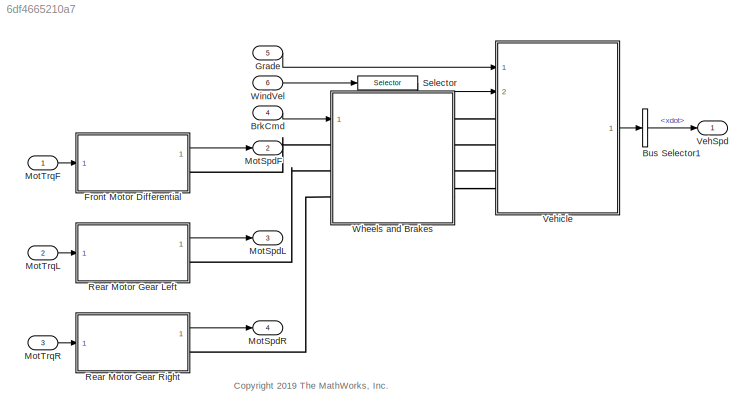
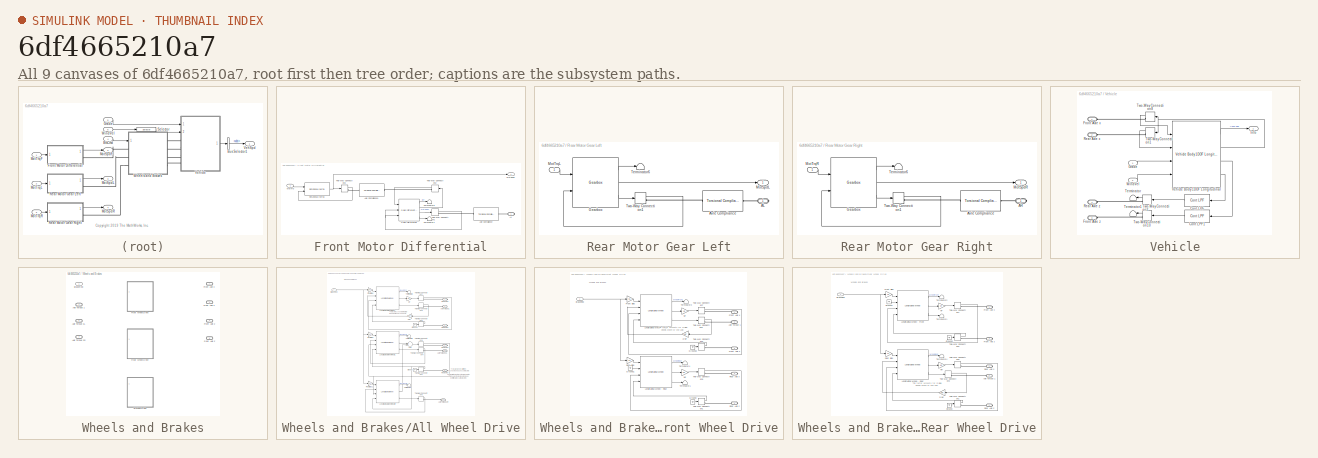
[diagram: thumbnail index - all 9 canvases of the model, root first then tree order]
MODEL slx_6df4665210a7
KIND model
CONFIG AbsTol = auto
CONFIG EnableMultiTasking = off
CONFIG FixedStep = auto
CONFIG MaxStep = auto
CONFIG MinStep = auto
CONFIG RelTol = 1e-3
CONFIG SampleTimeConstraint = Unconstrained
CONFIG Solver = VariableStepAuto
CONFIG SolverName = VariableStepAuto
CONFIG StartTime = 0.0
CONFIG StopTime = 10.0
BLOCK [Inport] BrkCmd
  IconDisplay = Port number
  Port = 4
BLOCK [BusSelector] Bus Selector1
  OutputAsBus = off
  OutputSignals = BdyFrm.Cg.Vel.xdot
  Ports = [1, 1]
BLOCK [SubSystem] Front Motor Differential
  Ports = [1, 1, 0, 0, 0, 0, 1]
  RequestExecContextInheritance = off
  VariantControl = 0
BLOCK [PMIOPort] Front Motor Differential/A1
  Side = Right
BLOCK [Reference] Front Motor Differential/Axle Compliance  REF=autolibsharedcoupling/Torsional Compliance
  Ports = [0, 0, 0, 0, 0, 1, 1]
  SourceBlock = autolibsharedcoupling/Torsional Compliance
  SourceProductName = Powertrain Blockset
  SourceType = Torsional Compliance
BLOCK [Reference] Front Motor Differential/Axle Compliance1  REF=autolibsharedcoupling/Torsional Compliance
  Ports = [0, 0, 0, 0, 0, 1, 1]
  SourceBlock = autolibsharedcoupling/Torsional Compliance
  SourceProductName = Powertrain Blockset
  SourceType = Torsional Compliance
BLOCK [Outport] Front Motor Differential/MotSpdF
  IconDisplay = Port number
  VectorParamsAs1DForOutWhenUnconnected = off
BLOCK [Inport] Front Motor Differential/MotTrq
  IconDisplay = Port number
BLOCK [Reference] Front Motor Differential/Open Differential  REF=autolibshareddiff/Open Differential
  Ports = [3, 4]
  SourceBlock = autolibshareddiff/Open Differential
  SourceProductName = Powertrain Blockset
  SourceType = Open Differential
BLOCK [Reference] Front Motor Differential/Rotational Inertia  REF=autolibsharedcoupling/Rotational Inertia
  Ports = [2, 1]
  SourceBlock = autolibsharedcoupling/Rotational Inertia
  SourceProductBaseCode = PW
  SourceProductName = Powertrain Blockset
  SourceType = Rotational Inertia
BLOCK [Terminator] Front Motor Differential/Terminator1
BLOCK [Terminator] Front Motor Differential/Terminator6
BLOCK [TwoWayConnection] Front Motor Differential/Two-Way Connection1
  Ports = [1, 1, 0, 0, 0, 0, 1]
BLOCK [TwoWayConnection] Front Motor Differential/Two-Way Connection2
  Ports = [1, 1, 0, 0, 0, 0, 1]
BLOCK [TwoWayConnection] Front Motor Differential/Two-Way Connection3
  Ports = [1, 1, 0, 0, 0, 0, 1]
BLOCK [Inport] Grade
  IconDisplay = Port number
  Port = 5
BLOCK [Outport] MotSpdF
  BusOutputAsStruct = on
  IconDisplay = Port number
  Port = 2
  SignalType = real
  VarSizeSig = No
  VectorParamsAs1DForOutWhenUnconnected = off
BLOCK [Outport] MotSpdL
  BusOutputAsStruct = on
  IconDisplay = Port number
  Port = 3
  SignalType = real
  VarSizeSig = No
  VectorParamsAs1DForOutWhenUnconnected = off
BLOCK [Outport] MotSpdR
  BusOutputAsStruct = on
  IconDisplay = Port number
  Port = 4
  SignalType = real
  VarSizeSig = No
  VectorParamsAs1DForOutWhenUnconnected = off
BLOCK [Inport] MotTrqF
  IconDisplay = Port number
BLOCK [Inport] MotTrqL
  IconDisplay = Port number
  Port = 2
BLOCK [Inport] MotTrqR
  IconDisplay = Port number
  Port = 3
BLOCK [SubSystem] Rear Motor Gear Left
  Ports = [1, 1, 0, 0, 0, 0, 1]
  RequestExecContextInheritance = off
  VariantControl = 0
BLOCK [PMIOPort] Rear Motor Gear Left/AL
  Side = Right
BLOCK [Reference] Rear Motor Gear Left/Axle Compliance  REF=autolibsharedcoupling/Torsional Compliance
  Ports = [0, 0, 0, 0, 0, 1, 1]
  SourceBlock = autolibsharedcoupling/Torsional Compliance
  SourceProductName = Powertrain Blockset
  SourceType = Torsional Compliance
BLOCK [Reference] Rear Motor Gear Left/Gearbox  REF=autolibcoupling/Gearbox
  Ports = [2, 3]
  SourceBlock = autolibcoupling/Gearbox
  SourceProductBaseCode = PW
  SourceProductName = Powertrain Blockset
  SourceType = Gearbox
BLOCK [Outport] Rear Motor Gear Left/MotSpdL
  IconDisplay = Port number
  VectorParamsAs1DForOutWhenUnconnected = off
BLOCK [Inport] Rear Motor Gear Left/MotTrqL
  IconDisplay = Port number
BLOCK [Terminator] Rear Motor Gear Left/Terminator6
BLOCK [TwoWayConnection] Rear Motor Gear Left/Two-Way Connection1
  Ports = [1, 1, 0, 0, 0, 0, 1]
BLOCK [SubSystem] Rear Motor Gear Right
  Ports = [1, 1, 0, 0, 0, 0, 1]
  RequestExecContextInheritance = off
  VariantControl = 0
BLOCK [PMIOPort] Rear Motor Gear Right/AR
  Side = Right
BLOCK [Reference] Rear Motor Gear Right/Axle Compliance  REF=autolibsharedcoupling/Torsional Compliance
  Ports = [0, 0, 0, 0, 0, 1, 1]
  SourceBlock = autolibsharedcoupling/Torsional Compliance
  SourceProductName = Powertrain Blockset
  SourceType = Torsional Compliance
BLOCK [Reference] Rear Motor Gear Right/Gearbox  REF=autolibcoupling/Gearbox
  Ports = [2, 3]
  SourceBlock = autolibcoupling/Gearbox
  SourceProductBaseCode = PW
  SourceProductName = Powertrain Blockset
  SourceType = Gearbox
BLOCK [Outport] Rear Motor Gear Right/MotSpdR
  IconDisplay = Port number
  VectorParamsAs1DForOutWhenUnconnected = off
BLOCK [Inport] Rear Motor Gear Right/MotTrqR
  IconDisplay = Port number
BLOCK [Terminator] Rear Motor Gear Right/Terminator6
BLOCK [TwoWayConnection] Rear Motor Gear Right/Two-Way Connection1
  Ports = [1, 1, 0, 0, 0, 0, 1]
BLOCK [Selector] Selector
  IndexOptions = Index vector (dialog)
  Indices = [1]
  InputPortWidth = 3
  OutputSizes = 1
  Ports = [1, 1]
BLOCK [Outport] VehSpd
  IconDisplay = Port number
  VectorParamsAs1DForOutWhenUnconnected = off
BLOCK [SubSystem] Vehicle
  Ports = [2, 1, 0, 0, 0, 4]
  RequestExecContextInheritance = off
BLOCK [Reference] Vehicle/Cont LPF  REF=autolibutils/Cont LPF
  Ports = [1, 1]
  SourceBlock = autolibutils/Cont LPF
  SourceProductBaseCode = PW
  SourceProductName = Powertrain Blockset
BLOCK [Reference] Vehicle/Cont LPF1  REF=autolibutils/Cont LPF
  Ports = [1, 1]
  SourceBlock = autolibutils/Cont LPF
  SourceProductBaseCode = PW
  SourceProductName = Powertrain Blockset
BLOCK [PMIOPort] Vehicle/Front Axle x
  Side = Left
BLOCK [PMIOPort] Vehicle/Front Axle z
  Port = 3
  Side = Left
BLOCK [Inport] Vehicle/Grade
  IconDisplay = Port number
BLOCK [Outport] Vehicle/Info
  IconDisplay = Port number
  VectorParamsAs1DForOutWhenUnconnected = off
BLOCK [PMIOPort] Vehicle/Rear Axle x
  Port = 2
  Side = Left
BLOCK [PMIOPort] Vehicle/Rear Axle z
  Port = 4
  Side = Left
BLOCK [Terminator] Vehicle/Terminator
BLOCK [Terminator] Vehicle/Terminator1
BLOCK [TwoWayConnection] Vehicle/Two-Way Connection1
  Ports = [1, 1, 0, 0, 0, 0, 1]
BLOCK [TwoWayConnection] Vehicle/Two-Way Connection10
  Ports = [1, 1, 0, 0, 0, 0, 1]
BLOCK [TwoWayConnection] Vehicle/Two-Way Connection2
  Ports = [1, 1, 0, 0, 0, 0, 1]
BLOCK [TwoWayConnection] Vehicle/Two-Way Connection8
  Ports = [1, 1, 0, 0, 0, 0, 1]
BLOCK [Reference] Vehicle/Vehicle Body 1DOF Longitudinal  REF=autolibshared/Vehicle Body 1DOF Longitudinal
  Ports = [4, 4]
  SourceBlock = autolibshared/Vehicle Body 1DOF Longitudinal
  SourceProductBaseCode = PW
  SourceProductName = Powertrain Blockset
  SourceType = Vehicle Body 1DOF Longitudinal
BLOCK [Inport] Vehicle/WindVel
  IconDisplay = Port number
  Port = 2
BLOCK [SubSystem] Wheels and Brakes
  LabelModeActiveChoice = 2
  Ports = [1, 0, 0, 0, 0, 3, 4]
  RequestExecContextInheritance = off
  Variant = on
  VariantControlMode = Label
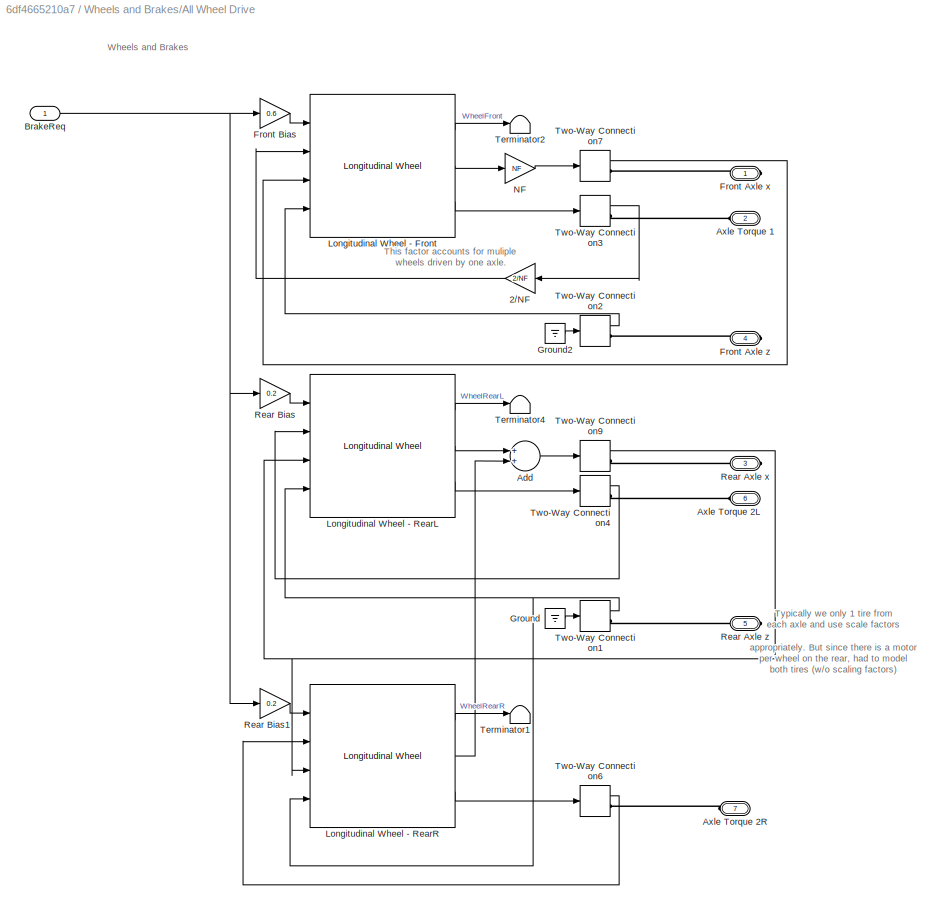
BLOCK [SubSystem] Wheels and Brakes/All Wheel Drive
  Ports = [1, 0, 0, 0, 0, 3, 4]
  RequestExecContextInheritance = off
  VariantControl = 2
BLOCK [Gain] Wheels and Brakes/All Wheel Drive/2//NF
  Gain = 2/NF
  OutDataTypeStr = Inherit: Inherit via internal rule
  ParamDataTypeStr = Inherit: Inherit via internal rule
  SaturateOnIntegerOverflow = off
BLOCK [Sum] Wheels and Brakes/All Wheel Drive/Add
  InputSameDT = off
  OutDataTypeStr = Inherit: Inherit via internal rule
  Ports = [2, 1]
  SaturateOnIntegerOverflow = off
BLOCK [PMIOPort] Wheels and Brakes/All Wheel Drive/Axle Torque 1
  Port = 2
  Side = Left
BLOCK [PMIOPort] Wheels and Brakes/All Wheel Drive/Axle Torque 2L
  Port = 6
  Side = Left
BLOCK [PMIOPort] Wheels and Brakes/All Wheel Drive/Axle Torque 2R
  Port = 7
  Side = Left
BLOCK [Inport] Wheels and Brakes/All Wheel Drive/BrakeReq
  IconDisplay = Port number
BLOCK [PMIOPort] Wheels and Brakes/All Wheel Drive/Front Axle x
  Side = Right
BLOCK [PMIOPort] Wheels and Brakes/All Wheel Drive/Front Axle z
  Port = 4
  Side = Right
BLOCK [Gain] Wheels and Brakes/All Wheel Drive/Front Bias
  Gain = 0.6
  OutDataTypeStr = Inherit: Inherit via internal rule
  ParamDataTypeStr = Inherit: Inherit via internal rule
  SaturateOnIntegerOverflow = off
BLOCK [Ground] Wheels and Brakes/All Wheel Drive/Ground
BLOCK [Ground] Wheels and Brakes/All Wheel Drive/Ground2
BLOCK [Reference] Wheels and Brakes/All Wheel Drive/Longitudinal Wheel - Front  REF=autolibshared/Longitudinal Wheel
  AttributesFormatString = Brake Type: %<BrakeType>
  Ports = [4, 3]
  SourceBlock = autolibshared/Longitudinal Wheel
  SourceProductBaseCode = PW
  SourceProductName = Powertrain Blockset
  SourceType = Longitudinal Wheel
BLOCK [Reference] Wheels and Brakes/All Wheel Drive/Longitudinal Wheel - RearL  REF=autolibshared/Longitudinal Wheel
  AttributesFormatString = Brake Type: %<BrakeType>
  Ports = [4, 3]
  SourceBlock = autolibshared/Longitudinal Wheel
  SourceProductBaseCode = PW
  SourceProductName = Powertrain Blockset
  SourceType = Longitudinal Wheel
BLOCK [Reference] Wheels and Brakes/All Wheel Drive/Longitudinal Wheel - RearR  REF=autolibshared/Longitudinal Wheel
  AttributesFormatString = Brake Type: %<BrakeType>
  Ports = [4, 3]
  SourceBlock = autolibshared/Longitudinal Wheel
  SourceProductBaseCode = PW
  SourceProductName = Powertrain Blockset
  SourceType = Longitudinal Wheel
BLOCK [Gain] Wheels and Brakes/All Wheel Drive/NF
  Gain = NF
  OutDataTypeStr = Inherit: Inherit via internal rule
  ParamDataTypeStr = Inherit: Inherit via internal rule
  SaturateOnIntegerOverflow = off
BLOCK [PMIOPort] Wheels and Brakes/All Wheel Drive/Rear Axle x
  Port = 3
  Side = Right
BLOCK [PMIOPort] Wheels and Brakes/All Wheel Drive/Rear Axle z
  Port = 5
  Side = Right
BLOCK [Gain] Wheels and Brakes/All Wheel Drive/Rear Bias
  Gain = 0.2
  OutDataTypeStr = Inherit: Inherit via internal rule
  ParamDataTypeStr = Inherit: Inherit via internal rule
  SaturateOnIntegerOverflow = off
BLOCK [Gain] Wheels and Brakes/All Wheel Drive/Rear Bias1
  Gain = 0.2
  OutDataTypeStr = Inherit: Inherit via internal rule
  ParamDataTypeStr = Inherit: Inherit via internal rule
  SaturateOnIntegerOverflow = off
BLOCK [Terminator] Wheels and Brakes/All Wheel Drive/Terminator1
BLOCK [Terminator] Wheels and Brakes/All Wheel Drive/Terminator2
BLOCK [Terminator] Wheels and Brakes/All Wheel Drive/Terminator4
BLOCK [TwoWayConnection] Wheels and Brakes/All Wheel Drive/Two-Way Connection1
  Ports = [1, 1, 0, 0, 0, 0, 1]
BLOCK [TwoWayConnection] Wheels and Brakes/All Wheel Drive/Two-Way Connection2
  Ports = [1, 1, 0, 0, 0, 0, 1]
BLOCK [TwoWayConnection] Wheels and Brakes/All Wheel Drive/Two-Way Connection3
  Ports = [1, 1, 0, 0, 0, 0, 1]
BLOCK [TwoWayConnection] Wheels and Brakes/All Wheel Drive/Two-Way Connection4
  Ports = [1, 1, 0, 0, 0, 0, 1]
BLOCK [TwoWayConnection] Wheels and Brakes/All Wheel Drive/Two-Way Connection6
  Ports = [1, 1, 0, 0, 0, 0, 1]
BLOCK [TwoWayConnection] Wheels and Brakes/All Wheel Drive/Two-Way Connection7
  Ports = [1, 1, 0, 0, 0, 0, 1]
BLOCK [TwoWayConnection] Wheels and Brakes/All Wheel Drive/Two-Way Connection9
  Ports = [1, 1, 0, 0, 0, 0, 1]
BLOCK [PMIOPort] Wheels and Brakes/Axle Torque 1
  Port = 2
  Side = Left
BLOCK [PMIOPort] Wheels and Brakes/Axle Torque 2L
  Port = 6
  Side = Left
BLOCK [PMIOPort] Wheels and Brakes/Axle Torque 2R
  Port = 7
  Side = Left
BLOCK [Inport] Wheels and Brakes/BrakeReq
  IconDisplay = Port number
BLOCK [PMIOPort] Wheels and Brakes/Front Axle x
  Side = Right
BLOCK [PMIOPort] Wheels and Brakes/Front Axle z
  Port = 4
  Side = Right
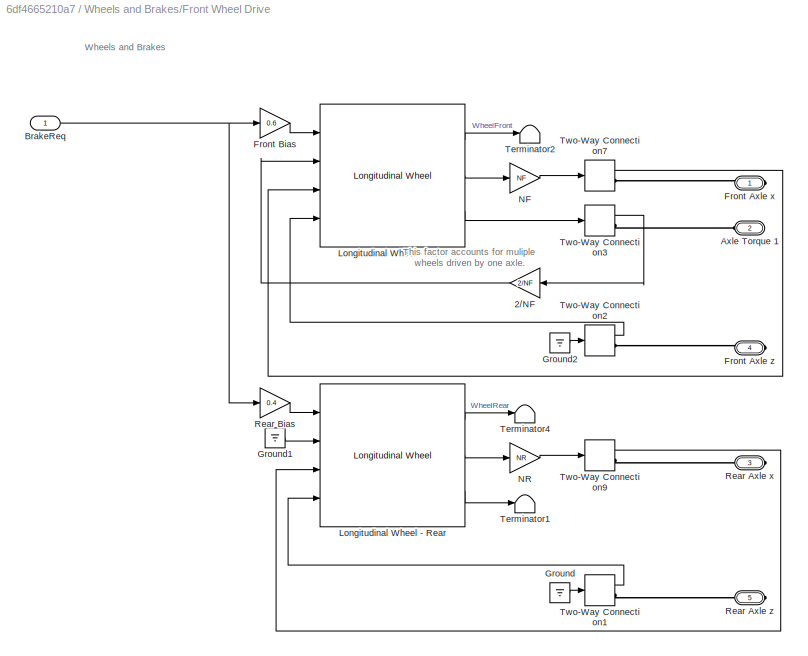
BLOCK [SubSystem] Wheels and Brakes/Front Wheel Drive
  Ports = [1, 0, 0, 0, 0, 1, 4]
  RequestExecContextInheritance = off
  VariantControl = 0
BLOCK [Gain] Wheels and Brakes/Front Wheel Drive/2//NF
  Gain = 2/NF
  OutDataTypeStr = Inherit: Inherit via internal rule
  ParamDataTypeStr = Inherit: Inherit via internal rule
  SaturateOnIntegerOverflow = off
BLOCK [PMIOPort] Wheels and Brakes/Front Wheel Drive/Axle Torque 1
  Port = 2
  Side = Left
BLOCK [Inport] Wheels and Brakes/Front Wheel Drive/BrakeReq
  IconDisplay = Port number
BLOCK [PMIOPort] Wheels and Brakes/Front Wheel Drive/Front Axle x
  Side = Right
BLOCK [PMIOPort] Wheels and Brakes/Front Wheel Drive/Front Axle z
  Port = 4
  Side = Right
BLOCK [Gain] Wheels and Brakes/Front Wheel Drive/Front Bias
  Gain = 0.6
  OutDataTypeStr = Inherit: Inherit via internal rule
  ParamDataTypeStr = Inherit: Inherit via internal rule
  SaturateOnIntegerOverflow = off
BLOCK [Ground] Wheels and Brakes/Front Wheel Drive/Ground
BLOCK [Ground] Wheels and Brakes/Front Wheel Drive/Ground1
BLOCK [Ground] Wheels and Brakes/Front Wheel Drive/Ground2
BLOCK [Reference] Wheels and Brakes/Front Wheel Drive/Longitudinal Wheel - Front  REF=autolibshared/Longitudinal Wheel
  AttributesFormatString = Brake Type: %<BrakeType>
  Ports = [4, 3]
  SourceBlock = autolibshared/Longitudinal Wheel
  SourceProductBaseCode = PW
  SourceProductName = Powertrain Blockset
  SourceType = Longitudinal Wheel
BLOCK [Reference] Wheels and Brakes/Front Wheel Drive/Longitudinal Wheel - Rear  REF=autolibshared/Longitudinal Wheel
  AttributesFormatString = Brake Type: %<BrakeType>
  Ports = [4, 3]
  SourceBlock = autolibshared/Longitudinal Wheel
  SourceProductBaseCode = PW
  SourceProductName = Powertrain Blockset
  SourceType = Longitudinal Wheel
BLOCK [Gain] Wheels and Brakes/Front Wheel Drive/NF
  Gain = NF
  OutDataTypeStr = Inherit: Inherit via internal rule
  ParamDataTypeStr = Inherit: Inherit via internal rule
  SaturateOnIntegerOverflow = off
BLOCK [Gain] Wheels and Brakes/Front Wheel Drive/NR
  Gain = NR
  OutDataTypeStr = Inherit: Inherit via internal rule
  ParamDataTypeStr = Inherit: Inherit via internal rule
  SaturateOnIntegerOverflow = off
BLOCK [PMIOPort] Wheels and Brakes/Front Wheel Drive/Rear Axle x
  Port = 3
  Side = Right
BLOCK [PMIOPort] Wheels and Brakes/Front Wheel Drive/Rear Axle z
  Port = 5
  Side = Right
BLOCK [Gain] Wheels and Brakes/Front Wheel Drive/Rear Bias
  Gain = 0.4
  OutDataTypeStr = Inherit: Inherit via internal rule
  ParamDataTypeStr = Inherit: Inherit via internal rule
  SaturateOnIntegerOverflow = off
BLOCK [Terminator] Wheels and Brakes/Front Wheel Drive/Terminator1
BLOCK [Terminator] Wheels and Brakes/Front Wheel Drive/Terminator2
BLOCK [Terminator] Wheels and Brakes/Front Wheel Drive/Terminator4
BLOCK [TwoWayConnection] Wheels and Brakes/Front Wheel Drive/Two-Way Connection1
  Ports = [1, 1, 0, 0, 0, 0, 1]
BLOCK [TwoWayConnection] Wheels and Brakes/Front Wheel Drive/Two-Way Connection2
  Ports = [1, 1, 0, 0, 0, 0, 1]
BLOCK [TwoWayConnection] Wheels and Brakes/Front Wheel Drive/Two-Way Connection3
  Ports = [1, 1, 0, 0, 0, 0, 1]
BLOCK [TwoWayConnection] Wheels and Brakes/Front Wheel Drive/Two-Way Connection7
  Ports = [1, 1, 0, 0, 0, 0, 1]
BLOCK [TwoWayConnection] Wheels and Brakes/Front Wheel Drive/Two-Way Connection9
  Ports = [1, 1, 0, 0, 0, 0, 1]
BLOCK [PMIOPort] Wheels and Brakes/Rear Axle x
  Port = 3
  Side = Right
BLOCK [PMIOPort] Wheels and Brakes/Rear Axle z
  Port = 5
  Side = Right
BLOCK [SubSystem] Wheels and Brakes/Rear Wheel Drive
  Ports = [1, 0, 0, 0, 0, 1, 4]
  RequestExecContextInheritance = off
  VariantControl = 1
BLOCK [Gain] Wheels and Brakes/Rear Wheel Drive/2//NR
  Gain = 2/NR
  OutDataTypeStr = Inherit: Inherit via internal rule
  ParamDataTypeStr = Inherit: Inherit via internal rule
  SaturateOnIntegerOverflow = off
BLOCK [PMIOPort] Wheels and Brakes/Rear Wheel Drive/Axle Torque 1
  Port = 5
  Side = Left
BLOCK [Inport] Wheels and Brakes/Rear Wheel Drive/BrakeReq
  IconDisplay = Port number
BLOCK [PMIOPort] Wheels and Brakes/Rear Wheel Drive/Front Axle x
  Side = Right
BLOCK [PMIOPort] Wheels and Brakes/Rear Wheel Drive/Front Axle z
  Port = 3
  Side = Right
BLOCK [Gain] Wheels and Brakes/Rear Wheel Drive/Front Bias
  Gain = 0.6
  OutDataTypeStr = Inherit: Inherit via internal rule
  ParamDataTypeStr = Inherit: Inherit via internal rule
  SaturateOnIntegerOverflow = off
BLOCK [Ground] Wheels and Brakes/Rear Wheel Drive/Ground
BLOCK [Ground] Wheels and Brakes/Rear Wheel Drive/Ground1
BLOCK [Ground] Wheels and Brakes/Rear Wheel Drive/Ground2
BLOCK [Reference] Wheels and Brakes/Rear Wheel Drive/Longitudinal Wheel - Front  REF=autolibshared/Longitudinal Wheel
  AttributesFormatString = Brake Type: %<BrakeType>
  Ports = [4, 3]
  SourceBlock = autolibshared/Longitudinal Wheel
  SourceProductBaseCode = PW
  SourceProductName = Powertrain Blockset
  SourceType = Longitudinal Wheel
BLOCK [Reference] Wheels and Brakes/Rear Wheel Drive/Longitudinal Wheel - Rear  REF=autolibshared/Longitudinal Wheel
  AttributesFormatString = Brake Type: %<BrakeType>
  Ports = [4, 3]
  SourceBlock = autolibshared/Longitudinal Wheel
  SourceProductBaseCode = PW
  SourceProductName = Powertrain Blockset
  SourceType = Longitudinal Wheel
BLOCK [Gain] Wheels and Brakes/Rear Wheel Drive/NF
  Gain = NF
  OutDataTypeStr = Inherit: Inherit via internal rule
  ParamDataTypeStr = Inherit: Inherit via internal rule
  SaturateOnIntegerOverflow = off
BLOCK [Gain] Wheels and Brakes/Rear Wheel Drive/NR
  Gain = NR
  OutDataTypeStr = Inherit: Inherit via internal rule
  ParamDataTypeStr = Inherit: Inherit via internal rule
  SaturateOnIntegerOverflow = off
BLOCK [PMIOPort] Wheels and Brakes/Rear Wheel Drive/Rear Axle x
  Port = 2
  Side = Right
BLOCK [PMIOPort] Wheels and Brakes/Rear Wheel Drive/Rear Axle z
  Port = 4
  Side = Right
BLOCK [Gain] Wheels and Brakes/Rear Wheel Drive/Rear Bias
  Gain = 0.4
  OutDataTypeStr = Inherit: Inherit via internal rule
  ParamDataTypeStr = Inherit: Inherit via internal rule
  SaturateOnIntegerOverflow = off
BLOCK [Terminator] Wheels and Brakes/Rear Wheel Drive/Terminator1
BLOCK [Terminator] Wheels and Brakes/Rear Wheel Drive/Terminator2
BLOCK [Terminator] Wheels and Brakes/Rear Wheel Drive/Terminator4
BLOCK [TwoWayConnection] Wheels and Brakes/Rear Wheel Drive/Two-Way Connection1
  Ports = [1, 1, 0, 0, 0, 0, 1]
BLOCK [TwoWayConnection] Wheels and Brakes/Rear Wheel Drive/Two-Way Connection2
  Ports = [1, 1, 0, 0, 0, 0, 1]
BLOCK [TwoWayConnection] Wheels and Brakes/Rear Wheel Drive/Two-Way Connection3
  Ports = [1, 1, 0, 0, 0, 0, 1]
BLOCK [TwoWayConnection] Wheels and Brakes/Rear Wheel Drive/Two-Way Connection7
  Ports = [1, 1, 0, 0, 0, 0, 1]
BLOCK [TwoWayConnection] Wheels and Brakes/Rear Wheel Drive/Two-Way Connection9
  Ports = [1, 1, 0, 0, 0, 0, 1]
BLOCK [Inport] WindVel
  IconDisplay = Port number
  Port = 6
ANNOTATION (root): <copyright redacted>
ANNOTATION Wheels and Brakes/All Wheel Drive: This factor accounts for muliple wheels driven by one axle.
ANNOTATION Wheels and Brakes/All Wheel Drive: Typically we only 1 tire from each axle and use scale factors appropriately. But since there is a motor per wheel on the rear, had to model both tires (w/o scaling factors)
ANNOTATION Wheels and Brakes/All Wheel Drive: Wheels and Brakes
ANNOTATION Wheels and Brakes/Front Wheel Drive: This factor accounts for muliple wheels driven by one axle.
ANNOTATION Wheels and Brakes/Front Wheel Drive: Wheels and Brakes
ANNOTATION Wheels and Brakes/Rear Wheel Drive: This factor accounts for muliple wheels driven by one axle.
ANNOTATION Wheels and Brakes/Rear Wheel Drive: Wheels and Brakes
LINE BrkCmd:1 -> Wheels and Brakes:1
LINE Bus Selector1:1 -> VehSpd:1
LINE Front Motor Differential/MotTrq:1 -> Front Motor Differential/Rotational Inertia:1
LINE Front Motor Differential/Open Differential:1 -> Front Motor Differential/Terminator6:1
LINE Front Motor Differential/Open Differential:2 -> Front Motor Differential/Two-Way Connection2:1
LINE Front Motor Differential/Open Differential:3 -> Front Motor Differential/Two-Way Connection1:1
LINE Front Motor Differential/Open Differential:4 -> Front Motor Differential/Terminator1:1
NET Front Motor Differential/Rotational Inertia:1 -> Front Motor Differential/MotSpdF:1, Front Motor Differential/Two-Way Connection3:1
NET Front Motor Differential/Two-Way Connection1:1 -> Front Motor Differential/Open Differential:2, Front Motor Differential/Open Differential:3
LINE Front Motor Differential/Two-Way Connection2:1 -> Front Motor Differential/Open Differential:1
LINE Front Motor Differential/Two-Way Connection3:1 -> Front Motor Differential/Rotational Inertia:2
LINE Front Motor Differential:1 -> MotSpdF:1
LINE Grade:1 -> Vehicle:1
LINE MotTrqF:1 -> Front Motor Differential:1
LINE MotTrqL:1 -> Rear Motor Gear Left:1
LINE MotTrqR:1 -> Rear Motor Gear Right:1
LINE Rear Motor Gear Left/Gearbox:1 -> Rear Motor Gear Left/Terminator6:1
LINE Rear Motor Gear Left/Gearbox:2 -> Rear Motor Gear Left/MotSpdL:1
LINE Rear Motor Gear Left/Gearbox:3 -> Rear Motor Gear Left/Two-Way Connection1:1
LINE Rear Motor Gear Left/MotTrqL:1 -> Rear Motor Gear Left/Gearbox:1
LINE Rear Motor Gear Left/Two-Way Connection1:1 -> Rear Motor Gear Left/Gearbox:2
LINE Rear Motor Gear Left:1 -> MotSpdL:1
LINE Rear Motor Gear Right/Gearbox:1 -> Rear Motor Gear Right/Terminator6:1
LINE Rear Motor Gear Right/Gearbox:2 -> Rear Motor Gear Right/MotSpdR:1
LINE Rear Motor Gear Right/Gearbox:3 -> Rear Motor Gear Right/Two-Way Connection1:1
LINE Rear Motor Gear Right/MotTrqR:1 -> Rear Motor Gear Right/Gearbox:1
LINE Rear Motor Gear Right/Two-Way Connection1:1 -> Rear Motor Gear Right/Gearbox:2
LINE Rear Motor Gear Right:1 -> MotSpdR:1
LINE Selector:1 -> Vehicle:2
LINE Vehicle/Cont LPF1:1 -> Vehicle/Two-Way Connection10:1
LINE Vehicle/Cont LPF:1 -> Vehicle/Two-Way Connection2:1
LINE Vehicle/Grade:1 -> Vehicle/Vehicle Body 1DOF Longitudinal:3
LINE Vehicle/Two-Way Connection10:1 -> Vehicle/Terminator1:1
LINE Vehicle/Two-Way Connection1:1 -> Vehicle/Vehicle Body 1DOF Longitudinal:2
LINE Vehicle/Two-Way Connection2:1 -> Vehicle/Terminator:1
LINE Vehicle/Two-Way Connection8:1 -> Vehicle/Vehicle Body 1DOF Longitudinal:1
LINE Vehicle/Vehicle Body 1DOF Longitudinal:1 -> Vehicle/Info:1
NET Vehicle/Vehicle Body 1DOF Longitudinal:2 -> Vehicle/Two-Way Connection1:1, Vehicle/Two-Way Connection8:1
LINE Vehicle/Vehicle Body 1DOF Longitudinal:3 -> Vehicle/Cont LPF1:1
LINE Vehicle/Vehicle Body 1DOF Longitudinal:4 -> Vehicle/Cont LPF:1
LINE Vehicle/WindVel:1 -> Vehicle/Vehicle Body 1DOF Longitudinal:4
LINE Vehicle:1 -> Bus Selector1:1
LINE Wheels and Brakes/All Wheel Drive/2//NF:1 -> Wheels and Brakes/All Wheel Drive/Longitudinal Wheel - Front:2
LINE Wheels and Brakes/All Wheel Drive/Add:1 -> Wheels and Brakes/All Wheel Drive/Two-Way Connection9:1
NET Wheels and Brakes/All Wheel Drive/BrakeReq:1 -> Wheels and Brakes/All Wheel Drive/Front Bias:1, Wheels and Brakes/All Wheel Drive/Rear Bias1:1, Wheels and Brakes/All Wheel Drive/Rear Bias:1
LINE Wheels and Brakes/All Wheel Drive/Front Bias:1 -> Wheels and Brakes/All Wheel Drive/Longitudinal Wheel - Front:1
LINE Wheels and Brakes/All Wheel Drive/Ground2:1 -> Wheels and Brakes/All Wheel Drive/Two-Way Connection2:1
LINE Wheels and Brakes/All Wheel Drive/Ground:1 -> Wheels and Brakes/All Wheel Drive/Two-Way Connection1:1
LINE Wheels and Brakes/All Wheel Drive/Longitudinal Wheel - Front:1 -> Wheels and Brakes/All Wheel Drive/Terminator2:1
LINE Wheels and Brakes/All Wheel Drive/Longitudinal Wheel - Front:2 -> Wheels and Brakes/All Wheel Drive/NF:1
LINE Wheels and Brakes/All Wheel Drive/Longitudinal Wheel - Front:3 -> Wheels and Brakes/All Wheel Drive/Two-Way Connection3:1
LINE Wheels and Brakes/All Wheel Drive/Longitudinal Wheel - RearL:1 -> Wheels and Brakes/All Wheel Drive/Terminator4:1
LINE Wheels and Brakes/All Wheel Drive/Longitudinal Wheel - RearL:2 -> Wheels and Brakes/All Wheel Drive/Add:1
LINE Wheels and Brakes/All Wheel Drive/Longitudinal Wheel - RearL:3 -> Wheels and Brakes/All Wheel Drive/Two-Way Connection4:1
LINE Wheels and Brakes/All Wheel Drive/Longitudinal Wheel - RearR:1 -> Wheels and Brakes/All Wheel Drive/Terminator1:1
LINE Wheels and Brakes/All Wheel Drive/Longitudinal Wheel - RearR:2 -> Wheels and Brakes/All Wheel Drive/Add:2
LINE Wheels and Brakes/All Wheel Drive/Longitudinal Wheel - RearR:3 -> Wheels and Brakes/All Wheel Drive/Two-Way Connection6:1
LINE Wheels and Brakes/All Wheel Drive/NF:1 -> Wheels and Brakes/All Wheel Drive/Two-Way Connection7:1
LINE Wheels and Brakes/All Wheel Drive/Rear Bias1:1 -> Wheels and Brakes/All Wheel Drive/Longitudinal Wheel - RearR:1
LINE Wheels and Brakes/All Wheel Drive/Rear Bias:1 -> Wheels and Brakes/All Wheel Drive/Longitudinal Wheel - RearL:1
NET Wheels and Brakes/All Wheel Drive/Two-Way Connection1:1 -> Wheels and Brakes/All Wheel Drive/Longitudinal Wheel - RearL:4, Wheels and Brakes/All Wheel Drive/Longitudinal Wheel - RearR:4
LINE Wheels and Brakes/All Wheel Drive/Two-Way Connection2:1 -> Wheels and Brakes/All Wheel Drive/Longitudinal Wheel - Front:4
LINE Wheels and Brakes/All Wheel Drive/Two-Way Connection3:1 -> Wheels and Brakes/All Wheel Drive/2//NF:1
LINE Wheels and Brakes/All Wheel Drive/Two-Way Connection4:1 -> Wheels and Brakes/All Wheel Drive/Longitudinal Wheel - RearL:2
LINE Wheels and Brakes/All Wheel Drive/Two-Way Connection6:1 -> Wheels and Brakes/All Wheel Drive/Longitudinal Wheel - RearR:2
LINE Wheels and Brakes/All Wheel Drive/Two-Way Connection7:1 -> Wheels and Brakes/All Wheel Drive/Longitudinal Wheel - Front:3
NET Wheels and Brakes/All Wheel Drive/Two-Way Connection9:1 -> Wheels and Brakes/All Wheel Drive/Longitudinal Wheel - RearL:3, Wheels and Brakes/All Wheel Drive/Longitudinal Wheel - RearR:3
LINE Wheels and Brakes/Front Wheel Drive/2//NF:1 -> Wheels and Brakes/Front Wheel Drive/Longitudinal Wheel - Front:2
NET Wheels and Brakes/Front Wheel Drive/BrakeReq:1 -> Wheels and Brakes/Front Wheel Drive/Front Bias:1, Wheels and Brakes/Front Wheel Drive/Rear Bias:1
LINE Wheels and Brakes/Front Wheel Drive/Front Bias:1 -> Wheels and Brakes/Front Wheel Drive/Longitudinal Wheel - Front:1
LINE Wheels and Brakes/Front Wheel Drive/Ground1:1 -> Wheels and Brakes/Front Wheel Drive/Longitudinal Wheel - Rear:2
LINE Wheels and Brakes/Front Wheel Drive/Ground2:1 -> Wheels and Brakes/Front Wheel Drive/Two-Way Connection2:1
LINE Wheels and Brakes/Front Wheel Drive/Ground:1 -> Wheels and Brakes/Front Wheel Drive/Two-Way Connection1:1
LINE Wheels and Brakes/Front Wheel Drive/Longitudinal Wheel - Front:1 -> Wheels and Brakes/Front Wheel Drive/Terminator2:1
LINE Wheels and Brakes/Front Wheel Drive/Longitudinal Wheel - Front:2 -> Wheels and Brakes/Front Wheel Drive/NF:1
LINE Wheels and Brakes/Front Wheel Drive/Longitudinal Wheel - Front:3 -> Wheels and Brakes/Front Wheel Drive/Two-Way Connection3:1
LINE Wheels and Brakes/Front Wheel Drive/Longitudinal Wheel - Rear:1 -> Wheels and Brakes/Front Wheel Drive/Terminator4:1
LINE Wheels and Brakes/Front Wheel Drive/Longitudinal Wheel - Rear:2 -> Wheels and Brakes/Front Wheel Drive/NR:1
LINE Wheels and Brakes/Front Wheel Drive/Longitudinal Wheel - Rear:3 -> Wheels and Brakes/Front Wheel Drive/Terminator1:1
LINE Wheels and Brakes/Front Wheel Drive/NF:1 -> Wheels and Brakes/Front Wheel Drive/Two-Way Connection7:1
LINE Wheels and Brakes/Front Wheel Drive/NR:1 -> Wheels and Brakes/Front Wheel Drive/Two-Way Connection9:1
LINE Wheels and Brakes/Front Wheel Drive/Rear Bias:1 -> Wheels and Brakes/Front Wheel Drive/Longitudinal Wheel - Rear:1
LINE Wheels and Brakes/Front Wheel Drive/Two-Way Connection1:1 -> Wheels and Brakes/Front Wheel Drive/Longitudinal Wheel - Rear:4
LINE Wheels and Brakes/Front Wheel Drive/Two-Way Connection2:1 -> Wheels and Brakes/Front Wheel Drive/Longitudinal Wheel - Front:4
LINE Wheels and Brakes/Front Wheel Drive/Two-Way Connection3:1 -> Wheels and Brakes/Front Wheel Drive/2//NF:1
LINE Wheels and Brakes/Front Wheel Drive/Two-Way Connection7:1 -> Wheels and Brakes/Front Wheel Drive/Longitudinal Wheel - Front:3
LINE Wheels and Brakes/Front Wheel Drive/Two-Way Connection9:1 -> Wheels and Brakes/Front Wheel Drive/Longitudinal Wheel - Rear:3
LINE Wheels and Brakes/Rear Wheel Drive/2//NR:1 -> Wheels and Brakes/Rear Wheel Drive/Longitudinal Wheel - Rear:2
NET Wheels and Brakes/Rear Wheel Drive/BrakeReq:1 -> Wheels and Brakes/Rear Wheel Drive/Front Bias:1, Wheels and Brakes/Rear Wheel Drive/Rear Bias:1
LINE Wheels and Brakes/Rear Wheel Drive/Front Bias:1 -> Wheels and Brakes/Rear Wheel Drive/Longitudinal Wheel - Front:1
LINE Wheels and Brakes/Rear Wheel Drive/Ground1:1 -> Wheels and Brakes/Rear Wheel Drive/Longitudinal Wheel - Front:2
LINE Wheels and Brakes/Rear Wheel Drive/Ground2:1 -> Wheels and Brakes/Rear Wheel Drive/Two-Way Connection2:1
LINE Wheels and Brakes/Rear Wheel Drive/Ground:1 -> Wheels and Brakes/Rear Wheel Drive/Two-Way Connection1:1
LINE Wheels and Brakes/Rear Wheel Drive/Longitudinal Wheel - Front:1 -> Wheels and Brakes/Rear Wheel Drive/Terminator2:1
LINE Wheels and Brakes/Rear Wheel Drive/Longitudinal Wheel - Front:2 -> Wheels and Brakes/Rear Wheel Drive/NF:1
LINE Wheels and Brakes/Rear Wheel Drive/Longitudinal Wheel - Front:3 -> Wheels and Brakes/Rear Wheel Drive/Terminator1:1
LINE Wheels and Brakes/Rear Wheel Drive/Longitudinal Wheel - Rear:1 -> Wheels and Brakes/Rear Wheel Drive/Terminator4:1
LINE Wheels and Brakes/Rear Wheel Drive/Longitudinal Wheel - Rear:2 -> Wheels and Brakes/Rear Wheel Drive/NR:1
LINE Wheels and Brakes/Rear Wheel Drive/Longitudinal Wheel - Rear:3 -> Wheels and Brakes/Rear Wheel Drive/Two-Way Connection3:1
LINE Wheels and Brakes/Rear Wheel Drive/NF:1 -> Wheels and Brakes/Rear Wheel Drive/Two-Way Connection7:1
LINE Wheels and Brakes/Rear Wheel Drive/NR:1 -> Wheels and Brakes/Rear Wheel Drive/Two-Way Connection9:1
LINE Wheels and Brakes/Rear Wheel Drive/Rear Bias:1 -> Wheels and Brakes/Rear Wheel Drive/Longitudinal Wheel - Rear:1
LINE Wheels and Brakes/Rear Wheel Drive/Two-Way Connection1:1 -> Wheels and Brakes/Rear Wheel Drive/Longitudinal Wheel - Rear:4
LINE Wheels and Brakes/Rear Wheel Drive/Two-Way Connection2:1 -> Wheels and Brakes/Rear Wheel Drive/Longitudinal Wheel - Front:4
LINE Wheels and Brakes/Rear Wheel Drive/Two-Way Connection3:1 -> Wheels and Brakes/Rear Wheel Drive/2//NR:1
LINE Wheels and Brakes/Rear Wheel Drive/Two-Way Connection7:1 -> Wheels and Brakes/Rear Wheel Drive/Longitudinal Wheel - Front:3
LINE Wheels and Brakes/Rear Wheel Drive/Two-Way Connection9:1 -> Wheels and Brakes/Rear Wheel Drive/Longitudinal Wheel - Rear:3
LINE WindVel:1 -> Selector:1
PLINE Front Motor Differential/A1:RConn1 -- Front Motor Differential/Axle Compliance:RConn1
PLINE Front Motor Differential/Axle Compliance1:LConn1 -- Front Motor Differential/Two-Way Connection3:RConn1
PLINE Front Motor Differential/Axle Compliance1:RConn1 -- Front Motor Differential/Two-Way Connection2:RConn1
PLINE Front Motor Differential/Axle Compliance:LConn1 -- Front Motor Differential/Two-Way Connection1:RConn1
PLINE Front Motor Differential:RConn1 -- Wheels and Brakes:LConn1
PLINE Rear Motor Gear Left/AL:RConn1 -- Rear Motor Gear Left/Axle Compliance:RConn1
PLINE Rear Motor Gear Left/Axle Compliance:LConn1 -- Rear Motor Gear Left/Two-Way Connection1:RConn1
PLINE Rear Motor Gear Left:RConn1 -- Wheels and Brakes:LConn2
PLINE Rear Motor Gear Right/AR:RConn1 -- Rear Motor Gear Right/Axle Compliance:RConn1
PLINE Rear Motor Gear Right/Axle Compliance:LConn1 -- Rear Motor Gear Right/Two-Way Connection1:RConn1
PLINE Rear Motor Gear Right:RConn1 -- Wheels and Brakes:LConn3
PLINE Vehicle/Front Axle x:RConn1 -- Vehicle/Two-Way Connection8:RConn1
PLINE Vehicle/Front Axle z:RConn1 -- Vehicle/Two-Way Connection10:RConn1
PLINE Vehicle/Rear Axle x:RConn1 -- Vehicle/Two-Way Connection1:RConn1
PLINE Vehicle/Rear Axle z:RConn1 -- Vehicle/Two-Way Connection2:RConn1
PLINE Vehicle:LConn1 -- Wheels and Brakes:RConn1
PLINE Vehicle:LConn2 -- Wheels and Brakes:RConn2
PLINE Vehicle:LConn3 -- Wheels and Brakes:RConn3
PLINE Vehicle:LConn4 -- Wheels and Brakes:RConn4
PLINE Wheels and Brakes/All Wheel Drive/Axle Torque 1:RConn1 -- Wheels and Brakes/All Wheel Drive/Two-Way Connection3:RConn1
PLINE Wheels and Brakes/All Wheel Drive/Axle Torque 2L:RConn1 -- Wheels and Brakes/All Wheel Drive/Two-Way Connection4:RConn1
PLINE Wheels and Brakes/All Wheel Drive/Axle Torque 2R:RConn1 -- Wheels and Brakes/All Wheel Drive/Two-Way Connection6:RConn1
PLINE Wheels and Brakes/All Wheel Drive/Front Axle x:RConn1 -- Wheels and Brakes/All Wheel Drive/Two-Way Connection7:RConn1
PLINE Wheels and Brakes/All Wheel Drive/Front Axle z:RConn1 -- Wheels and Brakes/All Wheel Drive/Two-Way Connection2:RConn1
PLINE Wheels and Brakes/All Wheel Drive/Rear Axle x:RConn1 -- Wheels and Brakes/All Wheel Drive/Two-Way Connection9:RConn1
PLINE Wheels and Brakes/All Wheel Drive/Rear Axle z:RConn1 -- Wheels and Brakes/All Wheel Drive/Two-Way Connection1:RConn1
PLINE Wheels and Brakes/Front Wheel Drive/Axle Torque 1:RConn1 -- Wheels and Brakes/Front Wheel Drive/Two-Way Connection3:RConn1
PLINE Wheels and Brakes/Front Wheel Drive/Front Axle x:RConn1 -- Wheels and Brakes/Front Wheel Drive/Two-Way Connection7:RConn1
PLINE Wheels and Brakes/Front Wheel Drive/Front Axle z:RConn1 -- Wheels and Brakes/Front Wheel Drive/Two-Way Connection2:RConn1
PLINE Wheels and Brakes/Front Wheel Drive/Rear Axle x:RConn1 -- Wheels and Brakes/Front Wheel Drive/Two-Way Connection9:RConn1
PLINE Wheels and Brakes/Front Wheel Drive/Rear Axle z:RConn1 -- Wheels and Brakes/Front Wheel Drive/Two-Way Connection1:RConn1
PLINE Wheels and Brakes/Rear Wheel Drive/Axle Torque 1:RConn1 -- Wheels and Brakes/Rear Wheel Drive/Two-Way Connection3:RConn1
PLINE Wheels and Brakes/Rear Wheel Drive/Front Axle x:RConn1 -- Wheels and Brakes/Rear Wheel Drive/Two-Way Connection7:RConn1
PLINE Wheels and Brakes/Rear Wheel Drive/Front Axle z:RConn1 -- Wheels and Brakes/Rear Wheel Drive/Two-Way Connection2:RConn1
PLINE Wheels and Brakes/Rear Wheel Drive/Rear Axle x:RConn1 -- Wheels and Brakes/Rear Wheel Drive/Two-Way Connection9:RConn1
PLINE Wheels and Brakes/Rear Wheel Drive/Rear Axle z:RConn1 -- Wheels and Brakes/Rear Wheel Drive/Two-Way Connection1:RConn1
note: NET lines group one-source signal fan-out (src -> all destinations, sorted); 1:1 wires keep LINE
